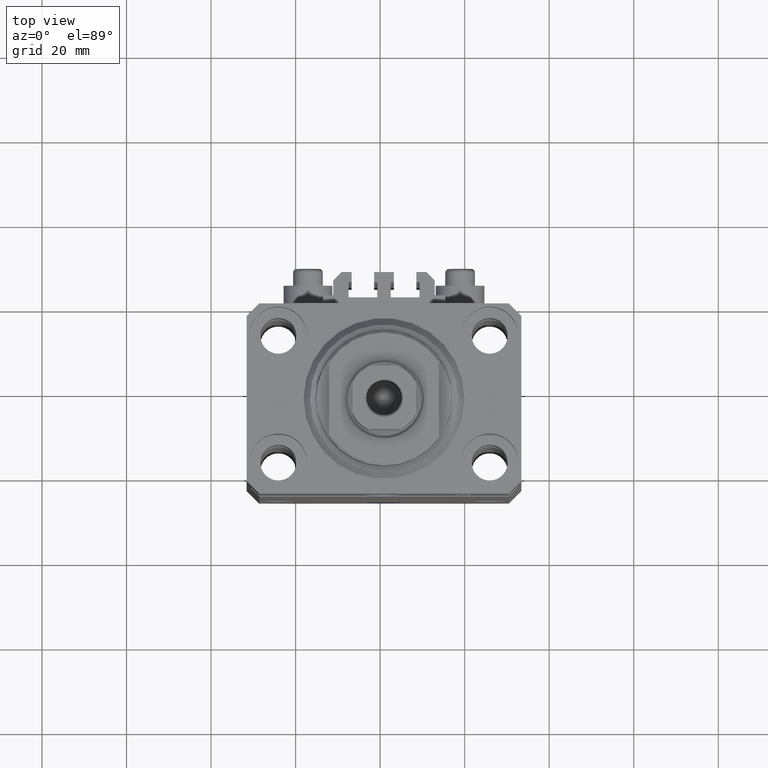
[diagram: clean part render]
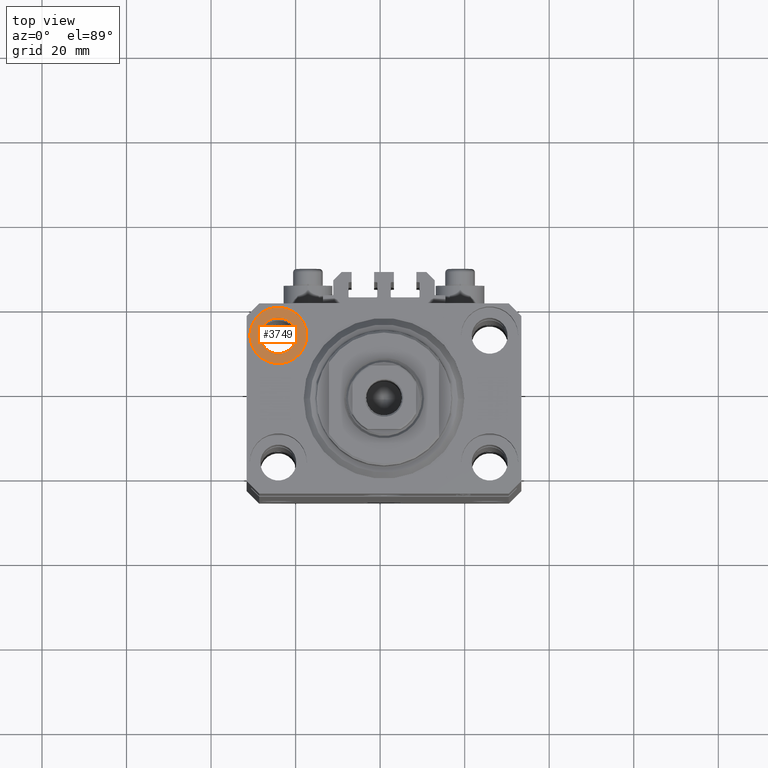
[diagram: same view with one face highlighted and labeled with its STEP entity id]
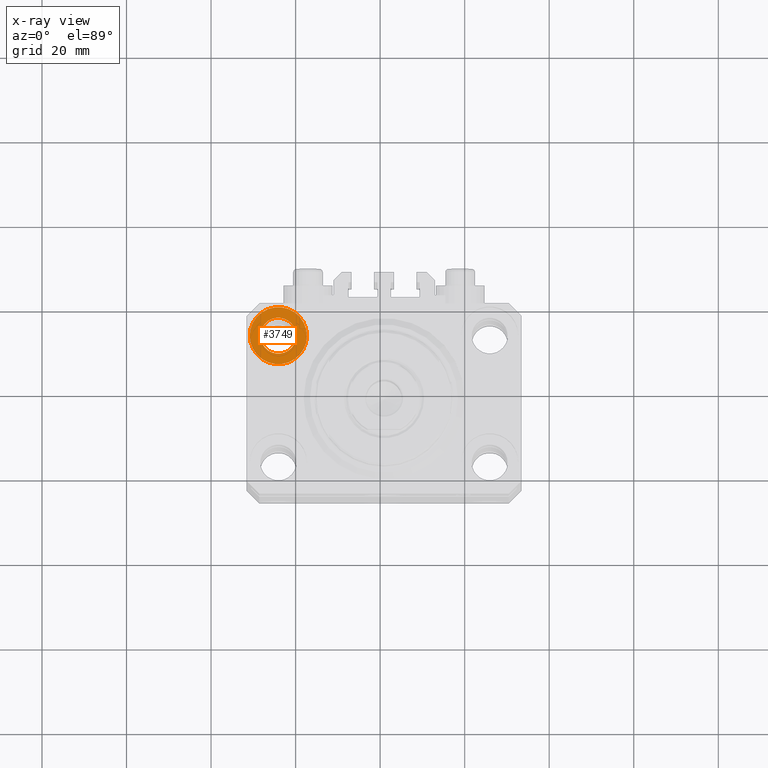
[diagram: x-ray of the same camera — body ghosted, the highlighted face saturated]
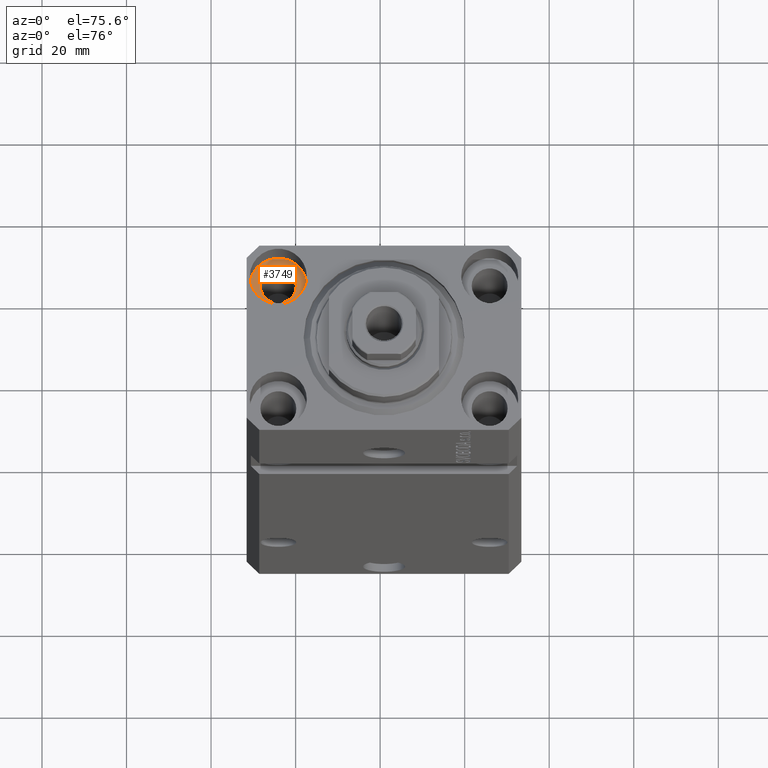
[diagram: same view with one face highlighted and labeled with its STEP entity id]
A machine part, top view. The second image highlights one B-rep face of the part: STEP entity #3749.
The next image is the same camera in x-ray: the body ghosted, the highlighted face saturated — about 0% of this face is hidden behind the body in this view.
A second angle (auxiliary view) of the same face is appended — the face is thin or edge-on in the first view.
In plain terms, the highlighted planar face has unit normal (0, 0, 1).
Its self-contained STEP definition (entity closure, byte-faithful):
#2433 = EDGE_CURVE ( 'NONE', #18746, #8341, #22407, .T. ) ;
#3749 = ADVANCED_FACE ( 'NONE', ( #32118, #16980 ), #24799, .T. ) ;
#4016 = ORIENTED_EDGE ( 'NONE', *, *, #45252, .F. ) ;
#4462 = CARTESIAN_POINT ( 'NONE',  ( -25.00000000000000355, 15.00000000000000000, -9.000000000000000000 ) ) ;
#5399 = EDGE_CURVE ( 'NONE', #42392, #17386, #36410, .T. ) ;
#7016 = CIRCLE ( 'NONE', #34284, 6.750000000022533087 ) ;
#7256 = DIRECTION ( 'NONE',  ( 0.000000000000000000, 0.000000000000000000, 1.000000000000000000 ) ) ;
#8341 = VERTEX_POINT ( 'NONE', #8893 ) ;
#8893 = CARTESIAN_POINT ( 'NONE',  ( -20.74999999997746869, 15.00000000000000000, -9.000000000000000000 ) ) ;
#9424 = CIRCLE ( 'NONE', #42910, 4.250000000022537527 ) ;
#10624 = DIRECTION ( 'NONE',  ( 0.000000000000000000, 0.000000000000000000, 1.000000000000000000 ) ) ;
#12761 = DIRECTION ( 'NONE',  ( 0.000000000000000000, 0.000000000000000000, 1.000000000000000000 ) ) ;
#13397 = DIRECTION ( 'NONE',  ( 0.000000000000000000, 0.000000000000000000, 1.000000000000000000 ) ) ;
#15261 = DIRECTION ( 'NONE',  ( 1.000000000000000000, 0.000000000000000000, 0.000000000000000000 ) ) ;
#15492 = ORIENTED_EDGE ( 'NONE', *, *, #5399, .T. ) ;
#16980 = FACE_OUTER_BOUND ( 'NONE', #42400, .T. ) ;
#17353 = CARTESIAN_POINT ( 'NONE',  ( -18.24999999997747224, 15.00000000000000000, -9.000000000000000000 ) ) ;
#17386 = VERTEX_POINT ( 'NONE', #40431 ) ;
#18746 = VERTEX_POINT ( 'NONE', #35174 ) ;
#20056 = AXIS2_PLACEMENT_3D ( 'NONE', #21904, #37708, #15261 ) ;
#20631 = EDGE_LOOP ( 'NONE', ( #4016, #39835 ) ) ;
#21904 = CARTESIAN_POINT ( 'NONE',  ( -25.00000000000000355, 15.00000000000000000, -9.000000000000000000 ) ) ;
#22407 = CIRCLE ( 'NONE', #41046, 4.250000000022537527 ) ;
#24382 = DIRECTION ( 'NONE',  ( 1.000000000000000000, 0.000000000000000000, 0.000000000000000000 ) ) ;
#24799 = PLANE ( 'NONE',  #38705 ) ;
#25801 = CARTESIAN_POINT ( 'NONE',  ( -25.00000000000000355, 15.00000000000000000, -9.000000000000000000 ) ) ;
#32118 = FACE_BOUND ( 'NONE', #20631, .T. ) ;
#34284 = AXIS2_PLACEMENT_3D ( 'NONE', #35584, #13397, #24382 ) ;
#34395 = ORIENTED_EDGE ( 'NONE', *, *, #42571, .T. ) ;
#35174 = CARTESIAN_POINT ( 'NONE',  ( -29.25000000002254197, 15.00000000000000000, -9.000000000000000000 ) ) ;
#35584 = CARTESIAN_POINT ( 'NONE',  ( -25.00000000000000355, 15.00000000000000000, -9.000000000000000000 ) ) ;
#36410 = CIRCLE ( 'NONE', #20056, 6.750000000022533087 ) ;
#36488 = CARTESIAN_POINT ( 'NONE',  ( -25.00000000000000355, 15.00000000000000000, -9.000000000000000000 ) ) ;
#37244 = DIRECTION ( 'NONE',  ( 1.000000000000000000, 0.000000000000000000, 0.000000000000000000 ) ) ;
#37708 = DIRECTION ( 'NONE',  ( 0.000000000000000000, 0.000000000000000000, 1.000000000000000000 ) ) ;
#38705 = AXIS2_PLACEMENT_3D ( 'NONE', #36488, #10624, #39665 ) ;
#39665 = DIRECTION ( 'NONE',  ( 1.000000000000000000, 0.000000000000000000, -0.000000000000000000 ) ) ;
#39835 = ORIENTED_EDGE ( 'NONE', *, *, #2433, .F. ) ;
#40431 = CARTESIAN_POINT ( 'NONE',  ( -31.75000000002253842, 15.00000000000000000, -9.000000000000000000 ) ) ;
#41046 = AXIS2_PLACEMENT_3D ( 'NONE', #4462, #12761, #42259 ) ;
#42259 = DIRECTION ( 'NONE',  ( 1.000000000000000000, 0.000000000000000000, 0.000000000000000000 ) ) ;
#42392 = VERTEX_POINT ( 'NONE', #17353 ) ;
#42400 = EDGE_LOOP ( 'NONE', ( #15492, #34395 ) ) ;
#42571 = EDGE_CURVE ( 'NONE', #17386, #42392, #7016, .T. ) ;
#42910 = AXIS2_PLACEMENT_3D ( 'NONE', #25801, #7256, #37244 ) ;
#45252 = EDGE_CURVE ( 'NONE', #8341, #18746, #9424, .T. ) ;